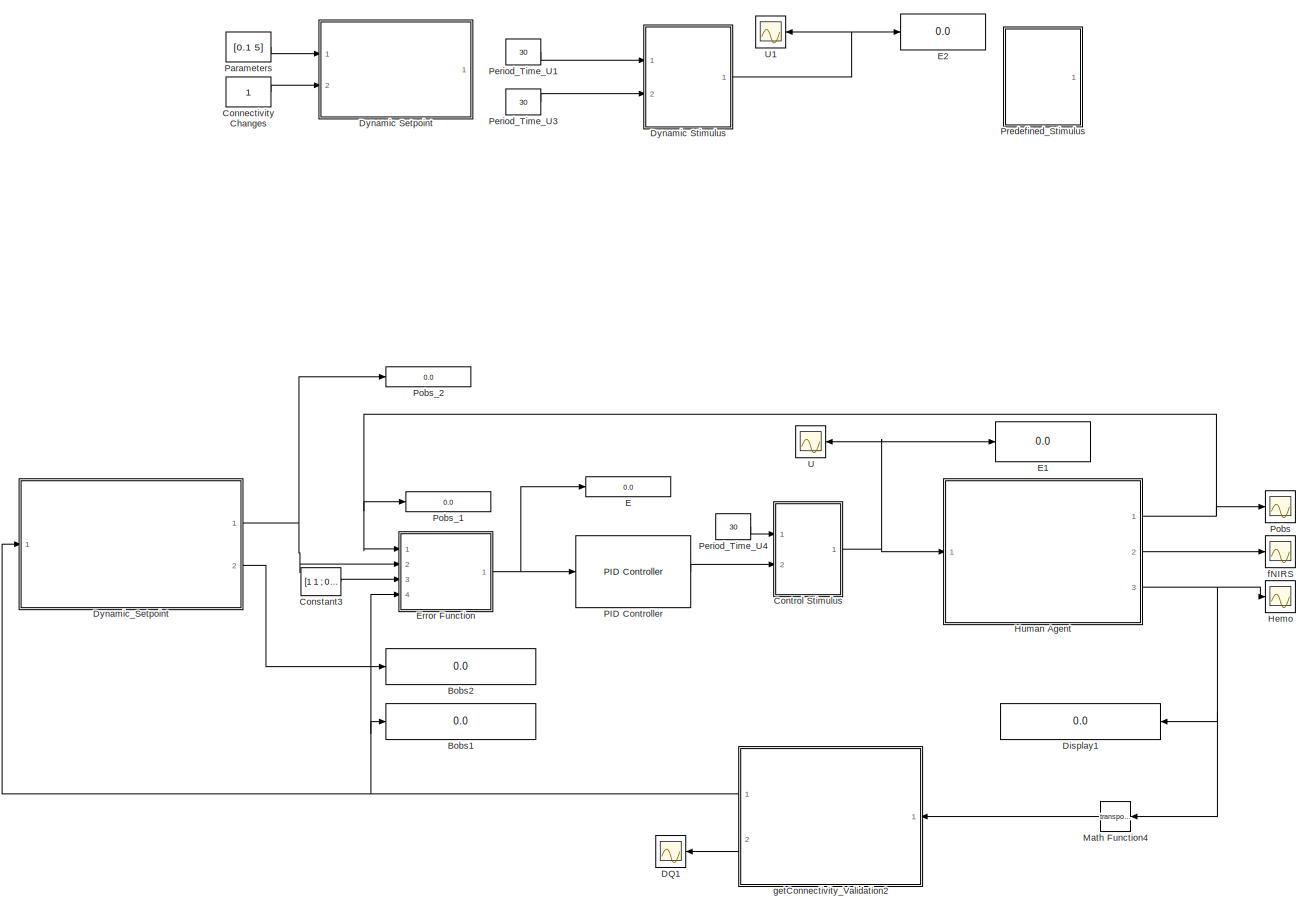
[diagram: root canvas - part 1/1, most of the canvas]
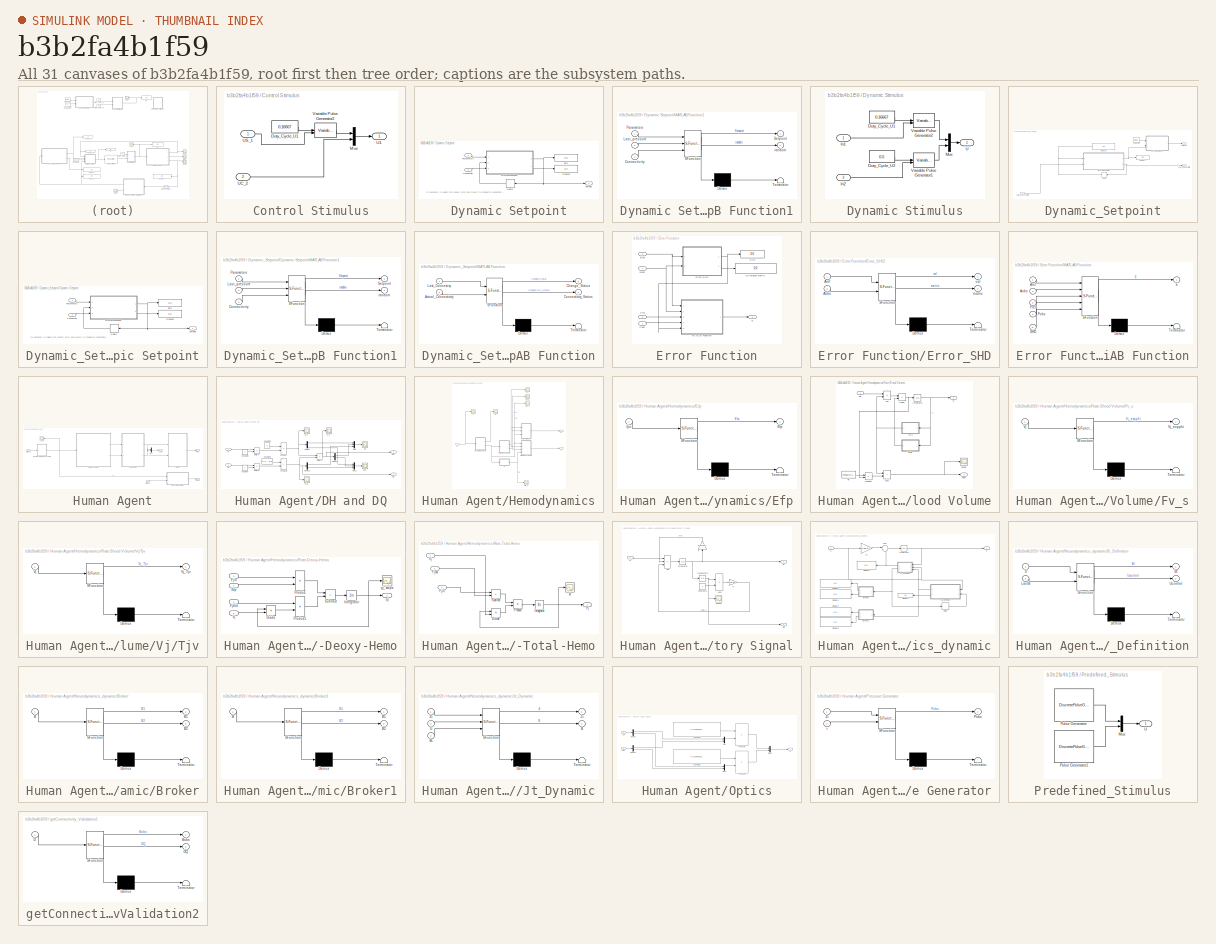
[diagram: thumbnail index - all 31 canvases of the model, root first then tree order]
MODEL slx_b3b2fa4b1f59
KIND model
CONFIG AbsTol = auto
CONFIG EnableMultiTasking = off
CONFIG FixedStep = 1/100
CONFIG MaxStep = auto
CONFIG MinStep = auto
CONFIG RelTol = 1e-3
CONFIG SampleTimeConstraint = Unconstrained
CONFIG SolverName = ode23tb
CONFIG StartTime = 0
CONFIG StopTime = 90
BLOCK [Display] Bobs1
  Decimation = 1
  Ports = [1]
BLOCK [Display] Bobs2
  Decimation = 1
  Ports = [1]
BLOCK [Constant] Connectivity Changes
BLOCK [Constant] Constant3
  Value = [1   1 ; 0  1]
BLOCK [SubSystem] Control Stimulus
  Ports = [2, 1]
  RequestExecContextInheritance = off
BLOCK [Constant] Control Stimulus/Duty_Cycle_U1
  OutMax = [0.8]
  OutMin = [0]
  Value = 0.16667
BLOCK [Mux] Control Stimulus/Mux
  DisplayOption = bar
  Inputs = 2
  Ports = [2, 1]
BLOCK [Outport] Control Stimulus/U1
BLOCK [Inport] Control Stimulus/UC_2
  Port = 2
BLOCK [Inport] Control Stimulus/US_1
BLOCK [VariablePulseGenerator] Control Stimulus/Variable Pulse Generator2
  RunAtFixedTimeIntervals = on
  SampleTime = 1/100
BLOCK [Scope] DQ1
  Floating = off
  NumInputPorts = 1
  Ports = [1]
  ScopeSpecificationString = Simulink.scopes.TimeScopeBlockCfg('CurrentConfiguration', extmgr.ConfigurationSet(extmgr.Configuration('Core','General UI',true,'FigureColor',[1 1 1]),extmgr.Configuration('Core','Source UI',true),extmgr.Configuration('Sources','WiredSimulink',true,'DataLoggingVariableName','ScopeData1'),extmgr.Configuration('Visuals','Time Domain',true,'SerializedDisplays',{struct('MinYLimReal','-0.34921','MaxYLi...<+1720ch>
BLOCK [Display] Display1
  Decimation = 1
  Ports = [1]
BLOCK [SubSystem] Dynamic Setpoint
  Ports = [2, 1]
  RequestExecContextInheritance = off
BLOCK [Inport] Dynamic Setpoint/Connectiviy
  Port = 2
BLOCK [Delay] Dynamic Setpoint/Delay1
  DelayLength = 1
  InitialCondition = 0
  InputPortMap = u0
  Ports = [1, 1]
BLOCK [SubSystem] Dynamic Setpoint/MATLAB Function1
  ErrorFcn = Stateflow.Translate.translate
  PermitHierarchicalResolution = ExplicitOnly
  Ports = [3, 2]
  RequestExecContextInheritance = off
  SFBlockType = MATLAB Function
  TreatAsAtomicUnit = on
BLOCK [Demux] Dynamic Setpoint/MATLAB Function1/ Demux 
  Outputs = 1
  Ports = [1, 1]
BLOCK [S-Function] Dynamic Setpoint/MATLAB Function1/ SFunction 
  EnableBusSupport = on
  FunctionName = sf_sfun
  PortCounts = [3 3]
  Ports = [3, 3]
  SFcnIsStateOwnerBlock = off
  SFunctionDeploymentMode = off
  Tag = Stateflow S-Function 11
BLOCK [Terminator] Dynamic Setpoint/MATLAB Function1/ Terminator 
BLOCK [Inport] Dynamic Setpoint/MATLAB Function1/Connectivity
  Port = 3
BLOCK [Inport] Dynamic Setpoint/MATLAB Function1/Last_pressure
  Port = 2
BLOCK [Inport] Dynamic Setpoint/MATLAB Function1/Parameters
BLOCK [Outport] Dynamic Setpoint/MATLAB Function1/Setpoint
BLOCK [Outport] Dynamic Setpoint/MATLAB Function1/random
  Port = 2
BLOCK [Inport] Dynamic Setpoint/Parameters
BLOCK [Display] Dynamic Setpoint/Random
  Decimation = 1
  Ports = [1]
BLOCK [Display] Dynamic Setpoint/Set1
  Decimation = 1
  Ports = [1]
BLOCK [Outport] Dynamic Setpoint/Setpoint
BLOCK [SubSystem] Dynamic Stimulus
  Ports = [2, 1]
  RequestExecContextInheritance = off
BLOCK [Constant] Dynamic Stimulus/Duty_Cycle_U1
  OutMax = [0.8]
  OutMin = [0]
  Value = 0.16667
BLOCK [Constant] Dynamic Stimulus/Duty_Cycle_U2
  OutMax = [0.8]
  OutMin = [0]
  Value = 0.5
BLOCK [Inport] Dynamic Stimulus/In1
BLOCK [Inport] Dynamic Stimulus/In2
  Port = 2
BLOCK [Mux] Dynamic Stimulus/Mux
  DisplayOption = bar
  Inputs = 2
  Ports = [2, 1]
BLOCK [Outport] Dynamic Stimulus/U
BLOCK [VariablePulseGenerator] Dynamic Stimulus/Variable Pulse Generator1
  RunAtFixedTimeIntervals = on
  SampleTime = 1/100
BLOCK [VariablePulseGenerator] Dynamic Stimulus/Variable Pulse Generator2
  RunAtFixedTimeIntervals = on
  SampleTime = 1/100
BLOCK [SubSystem] Dynamic_Setpoint
  Ports = [1, 2]
  RequestExecContextInheritance = off
BLOCK [Inport] Dynamic_Setpoint/Actual_Connectivity
BLOCK [Delay] Dynamic_Setpoint/Delay
  DelayLength = 1
  InputPortMap = u0
  Ports = [1, 1]
BLOCK [Display] Dynamic_Setpoint/Display1
  Decimation = 1
  Ports = [1]
BLOCK [Display] Dynamic_Setpoint/Display3
  Decimation = 1
  Ports = [1]
BLOCK [SubSystem] Dynamic_Setpoint/Dynamic Setpoint
  Ports = [2, 1]
  RequestExecContextInheritance = off
BLOCK [Inport] Dynamic_Setpoint/Dynamic Setpoint/Connectiviy
  Port = 2
BLOCK [Delay] Dynamic_Setpoint/Dynamic Setpoint/Delay1
  DelayLength = 1
  InitialCondition = 0
  InputPortMap = u0
  Ports = [1, 1]
BLOCK [SubSystem] Dynamic_Setpoint/Dynamic Setpoint/MATLAB Function1
  ErrorFcn = Stateflow.Translate.translate
  PermitHierarchicalResolution = ExplicitOnly
  Ports = [3, 2]
  RequestExecContextInheritance = off
  SFBlockType = MATLAB Function
  TreatAsAtomicUnit = on
BLOCK [Demux] Dynamic_Setpoint/Dynamic Setpoint/MATLAB Function1/ Demux 
  Outputs = 1
  Ports = [1, 1]
BLOCK [S-Function] Dynamic_Setpoint/Dynamic Setpoint/MATLAB Function1/ SFunction 
  EnableBusSupport = on
  FunctionName = sf_sfun
  PortCounts = [3 3]
  Ports = [3, 3]
  SFcnIsStateOwnerBlock = off
  SFunctionDeploymentMode = off
  Tag = Stateflow S-Function 9
BLOCK [Terminator] Dynamic_Setpoint/Dynamic Setpoint/MATLAB Function1/ Terminator 
BLOCK [Inport] Dynamic_Setpoint/Dynamic Setpoint/MATLAB Function1/Connectivity
  Port = 3
BLOCK [Inport] Dynamic_Setpoint/Dynamic Setpoint/MATLAB Function1/Last_pressure
  Port = 2
BLOCK [Inport] Dynamic_Setpoint/Dynamic Setpoint/MATLAB Function1/Parameters
BLOCK [Outport] Dynamic_Setpoint/Dynamic Setpoint/MATLAB Function1/Setpoint
BLOCK [Outport] Dynamic_Setpoint/Dynamic Setpoint/MATLAB Function1/random
  Port = 2
BLOCK [Inport] Dynamic_Setpoint/Dynamic Setpoint/Parameters
BLOCK [Display] Dynamic_Setpoint/Dynamic Setpoint/Random
  Decimation = 1
  Ports = [1]
BLOCK [Display] Dynamic_Setpoint/Dynamic Setpoint/Set1
  Decimation = 1
  Ports = [1]
BLOCK [Outport] Dynamic_Setpoint/Dynamic Setpoint/Setpoint
BLOCK [Outport] Dynamic_Setpoint/Last_Connectivity
  Port = 2
BLOCK [SubSystem] Dynamic_Setpoint/MATLAB Function
  ErrorFcn = Stateflow.Translate.translate
  PermitHierarchicalResolution = ExplicitOnly
  Ports = [2, 2]
  RequestExecContextInheritance = off
  SFBlockType = MATLAB Function
  TreatAsAtomicUnit = on
BLOCK [Demux] Dynamic_Setpoint/MATLAB Function/ Demux 
  Outputs = 1
  Ports = [1, 1]
BLOCK [S-Function] Dynamic_Setpoint/MATLAB Function/ SFunction 
  EnableBusSupport = on
  FunctionName = sf_sfun
  PortCounts = [2 3]
  Ports = [2, 3]
  SFcnIsStateOwnerBlock = off
  SFunctionDeploymentMode = off
  Tag = Stateflow S-Function 12
BLOCK [Terminator] Dynamic_Setpoint/MATLAB Function/ Terminator 
BLOCK [Inport] Dynamic_Setpoint/MATLAB Function/Actual_Connectivity
  Port = 2
BLOCK [Outport] Dynamic_Setpoint/MATLAB Function/Change_Status
BLOCK [Outport] Dynamic_Setpoint/MATLAB Function/Connectivity_Status
  Port = 2
BLOCK [Inport] Dynamic_Setpoint/MATLAB Function/Last_Connectivy
BLOCK [Constant] Dynamic_Setpoint/Parameters
  Value = [0.5 5]
BLOCK [Outport] Dynamic_Setpoint/Setpoint
BLOCK [Display] E
  Decimation = 1
  Ports = [1]
BLOCK [Display] E1
  Decimation = 1
  Ports = [1]
BLOCK [Display] E2
  Decimation = 1
  Ports = [1]
BLOCK [SubSystem] Error Function
  Ports = [4, 1]
  RequestExecContextInheritance = off
BLOCK [Inport] Error Function/Bobs
  Port = 4
BLOCK [Inport] Error Function/Bref
  Port = 3
BLOCK [Display] Error Function/Difference Matrix
  Decimation = 1
  Ports = [1]
BLOCK [Outport] Error Function/E
BLOCK [SubSystem] Error Function/Error_SHD
  ErrorFcn = Stateflow.Translate.translate
  PermitHierarchicalResolution = ExplicitOnly
  Ports = [2, 2]
  RequestExecContextInheritance = off
  SFBlockType = MATLAB Function
  TreatAsAtomicUnit = on
BLOCK [Demux] Error Function/Error_SHD/ Demux 
  Outputs = 1
  Ports = [1, 1]
BLOCK [S-Function] Error Function/Error_SHD/ SFunction 
  EnableBusSupport = on
  FunctionName = sf_sfun
  PortCounts = [2 3]
  Ports = [2, 3]
  SFcnIsStateOwnerBlock = off
  SFunctionDeploymentMode = off
  Tag = Stateflow S-Function 4
BLOCK [Terminator] Error Function/Error_SHD/ Terminator 
BLOCK [Inport] Error Function/Error_SHD/Aobs
  Port = 2
BLOCK [Inport] Error Function/Error_SHD/Aref
BLOCK [Outport] Error Function/Error_SHD/matrix
  Port = 2
BLOCK [Outport] Error Function/Error_SHD/val
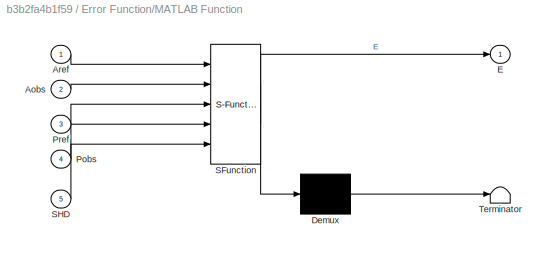
BLOCK [SubSystem] Error Function/MATLAB Function
  ErrorFcn = Stateflow.Translate.translate
  PermitHierarchicalResolution = ExplicitOnly
  Ports = [5, 1]
  RequestExecContextInheritance = off
  SFBlockType = MATLAB Function
  TreatAsAtomicUnit = on
BLOCK [Demux] Error Function/MATLAB Function/ Demux 
  Outputs = 1
  Ports = [1, 1]
BLOCK [S-Function] Error Function/MATLAB Function/ SFunction 
  EnableBusSupport = on
  FunctionName = sf_sfun
  PortCounts = [5 2]
  Ports = [5, 2]
  SFcnIsStateOwnerBlock = off
  SFunctionDeploymentMode = off
  Tag = Stateflow S-Function 6
BLOCK [Terminator] Error Function/MATLAB Function/ Terminator 
BLOCK [Inport] Error Function/MATLAB Function/Aobs
  Port = 2
BLOCK [Inport] Error Function/MATLAB Function/Aref
BLOCK [Outport] Error Function/MATLAB Function/E
BLOCK [Inport] Error Function/MATLAB Function/Pobs
  Port = 4
BLOCK [Inport] Error Function/MATLAB Function/Pref
  Port = 3
BLOCK [Inport] Error Function/MATLAB Function/SHD
  Port = 5
BLOCK [Inport] Error Function/Pobs
BLOCK [Inport] Error Function/Pref
  Port = 2
BLOCK [Display] Error Function/SHD
  Decimation = 1
  Ports = [1]
BLOCK [Scope] Hemo
  Floating = off
  NumInputPorts = 1
  Ports = [1]
  ScopeSpecificationString = Simulink.scopes.TimeScopeBlockCfg('CurrentConfiguration', extmgr.ConfigurationSet(extmgr.Configuration('Core','General UI',true,'FigureColor',[0 0 0]),extmgr.Configuration('Core','Source UI',true),extmgr.Configuration('Sources','WiredSimulink',true,'DataLoggingVariableName','ScopeData1'),extmgr.Configuration('Visuals','Time Domain',true,'SerializedDisplays',{struct('MinYLimReal','-61.03763','MaxYL...<+1723ch>
BLOCK [SubSystem] Human Agent
  Ports = [1, 3]
  RequestExecContextInheritance = off
BLOCK [Clock] Human Agent/Clock
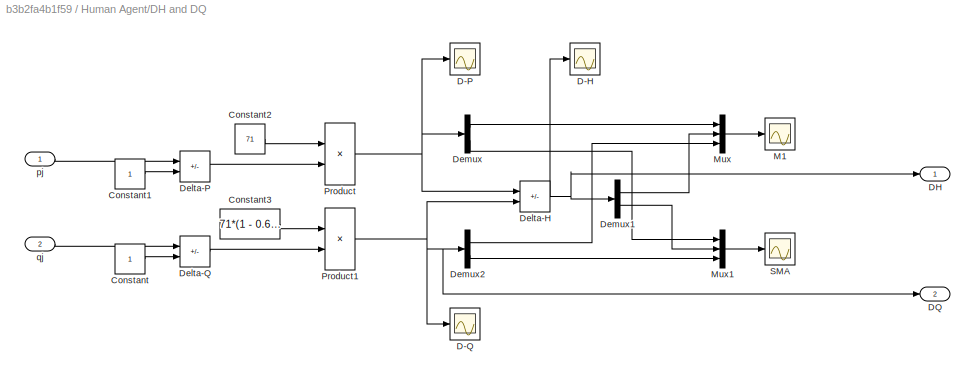
BLOCK [SubSystem] Human Agent/DH and DQ
  Ports = [2, 2]
  RequestExecContextInheritance = off
BLOCK [Constant] Human Agent/DH and DQ/Constant
BLOCK [Constant] Human Agent/DH and DQ/Constant1
BLOCK [Constant] Human Agent/DH and DQ/Constant2
  Value = 71
BLOCK [Constant] Human Agent/DH and DQ/Constant3
  Value = 71*(1 - 0.65)
BLOCK [Scope] Human Agent/DH and DQ/D-H
  Floating = off
  NumInputPorts = 1
  Ports = [1]
  ScopeSpecificationString = Simulink.scopes.TimeScopeBlockCfg('CurrentConfiguration', extmgr.ConfigurationSet(extmgr.Configuration('Core','General UI',true),extmgr.Configuration('Core','Source UI',true),extmgr.Configuration('Sources','WiredSimulink',true,'DataLoggingVariableName','ScopeData7'),extmgr.Configuration('Visuals','Time Domain',true,'SerializedDisplays',{struct('MinYLimReal','-2.91276','MaxYLimReal','17.16126','YLa...<+1449ch>
BLOCK [Scope] Human Agent/DH and DQ/D-P
  Floating = off
  NumInputPorts = 1
  Ports = [1]
  ScopeSpecificationString = Simulink.scopes.TimeScopeBlockCfg('CurrentConfiguration', extmgr.ConfigurationSet(extmgr.Configuration('Core','General UI',true),extmgr.Configuration('Core','Source UI',true),extmgr.Configuration('Sources','WiredSimulink',true,'DataLoggingVariableName','ScopeData5'),extmgr.Configuration('Visuals','Time Domain',true,'SerializedDisplays',{struct('MinYLimReal','-2.54989','MaxYLimReal','15.75385','YLa...<+1449ch>
BLOCK [Scope] Human Agent/DH and DQ/D-Q
  Floating = off
  NumInputPorts = 1
  Ports = [1]
  ScopeSpecificationString = Simulink.scopes.TimeScopeBlockCfg('CurrentConfiguration', extmgr.ConfigurationSet(extmgr.Configuration('Core','General UI',true),extmgr.Configuration('Core','Source UI',true),extmgr.Configuration('Sources','WiredSimulink',true,'DataLoggingVariableName','ScopeData6'),extmgr.Configuration('Visuals','Time Domain',true,'SerializedDisplays',{struct('MinYLimReal','-1.63975','MaxYLimReal','0.38869','YLab...<+1447ch>
BLOCK [Outport] Human Agent/DH and DQ/DH
BLOCK [Outport] Human Agent/DH and DQ/DQ
  Port = 2
BLOCK [Sum] Human Agent/DH and DQ/Delta-H
  IconShape = rectangular
  Inputs = +-
  Ports = [2, 1]
BLOCK [Sum] Human Agent/DH and DQ/Delta-P
  IconShape = rectangular
  Inputs = +-
  Ports = [2, 1]
BLOCK [Sum] Human Agent/DH and DQ/Delta-Q
  IconShape = rectangular
  Inputs = +-
  Ports = [2, 1]
BLOCK [Demux] Human Agent/DH and DQ/Demux
  Outputs = 2
  Ports = [1, 2]
BLOCK [Demux] Human Agent/DH and DQ/Demux1
  Outputs = 2
  Ports = [1, 2]
BLOCK [Demux] Human Agent/DH and DQ/Demux2
  Outputs = 2
  Ports = [1, 2]
BLOCK [Scope] Human Agent/DH and DQ/M1
  Floating = off
  NumInputPorts = 1
  Ports = [1]
  ScopeSpecificationString = Simulink.scopes.TimeScopeBlockCfg('CurrentConfiguration', extmgr.ConfigurationSet(extmgr.Configuration('Core','General UI',true),extmgr.Configuration('Core','Source UI',true),extmgr.Configuration('Sources','WiredSimulink',true,'DataLoggingVariableName','ScopeData8'),extmgr.Configuration('Visuals','Time Domain',true,'SerializedDisplays',{struct('MinYLimReal','-3.32107','MaxYLimReal','11.14492','YLa...<+1768ch>
BLOCK [Mux] Human Agent/DH and DQ/Mux
  DisplayOption = bar
  Inputs = 3
  Ports = [3, 1]
BLOCK [Mux] Human Agent/DH and DQ/Mux1
  DisplayOption = bar
  Inputs = 3
  Ports = [3, 1]
BLOCK [Product] Human Agent/DH and DQ/Product
  Ports = [2, 1]
BLOCK [Product] Human Agent/DH and DQ/Product1
  Ports = [2, 1]
BLOCK [Scope] Human Agent/DH and DQ/SMA
  Floating = off
  NumInputPorts = 1
  Ports = [1]
  ScopeSpecificationString = Simulink.scopes.TimeScopeBlockCfg('CurrentConfiguration', extmgr.ConfigurationSet(extmgr.Configuration('Core','General UI',true),extmgr.Configuration('Core','Source UI',true),extmgr.Configuration('Sources','WiredSimulink',true,'DataLoggingVariableName','ScopeData9'),extmgr.Configuration('Visuals','Time Domain',true,'SerializedDisplays',{struct('MinYLimReal','-6.21377','MaxYLimReal','17.71331','YLa...<+1773ch>
BLOCK [Inport] Human Agent/DH and DQ/pj
BLOCK [Inport] Human Agent/DH and DQ/qj
  Port = 2
BLOCK [Outport] Human Agent/DH-Q
  Port = 3
BLOCK [SubSystem] Human Agent/Hemodynamics
  Ports = [1, 2]
  RequestExecContextInheritance = off
BLOCK [SubSystem] Human Agent/Hemodynamics/Efp
  ErrorFcn = Stateflow.Translate.translate
  PermitHierarchicalResolution = ExplicitOnly
  Ports = [1, 1]
  RequestExecContextInheritance = off
  SFBlockType = MATLAB Function
  TreatAsAtomicUnit = on
BLOCK [Demux] Human Agent/Hemodynamics/Efp/ Demux 
  Outputs = 1
  Ports = [1, 1]
BLOCK [S-Function] Human Agent/Hemodynamics/Efp/ SFunction 
  EnableBusSupport = on
  FunctionName = sf_sfun
  PortCounts = [1 2]
  Ports = [1, 2]
  SFcnIsStateOwnerBlock = off
  SFunctionDeploymentMode = off
  Tag = Stateflow S-Function 5
BLOCK [Terminator] Human Agent/Hemodynamics/Efp/ Terminator 
BLOCK [Outport] Human Agent/Hemodynamics/Efp/Efp
BLOCK [Inport] Human Agent/Hemodynamics/Efp/fjin
BLOCK [Scope] Human Agent/Hemodynamics/Efp_1
  Floating = off
  NumInputPorts = 1
  Ports = [1]
  ScopeSpecificationString = Simulink.scopes.TimeScopeBlockCfg('CurrentConfiguration', extmgr.ConfigurationSet(extmgr.Configuration('Core','General UI',true),extmgr.Configuration('Core','Source UI',true),extmgr.Configuration('Sources','WiredSimulink',true,'DataLoggingVariableName','ScopeData7'),extmgr.Configuration('Visuals','Time Domain',true,'SerializedDisplays',{struct('MinYLimReal','0.87922','MaxYLimReal','1.03497','YLabe...<+1400ch>
BLOCK [Scope] Human Agent/Hemodynamics/Fjin_1
  Floating = off
  NumInputPorts = 1
  Ports = [1]
  ScopeSpecificationString = Simulink.scopes.TimeScopeBlockCfg('CurrentConfiguration', extmgr.ConfigurationSet(extmgr.Configuration('Core','General UI',true),extmgr.Configuration('Core','Source UI',true),extmgr.Configuration('Sources','WiredSimulink',true,'DataLoggingVariableName','ScopeData6'),extmgr.Configuration('Visuals','Time Domain',true,'SerializedDisplays',{struct('MinYLimReal','0.91944','MaxYLimReal','1.21553','YLabe...<+1402ch>
BLOCK [Scope] Human Agent/Hemodynamics/Fjout
  Floating = off
  NumInputPorts = 1
  Ports = [1]
  ScopeSpecificationString = Simulink.scopes.TimeScopeBlockCfg('CurrentConfiguration', extmgr.ConfigurationSet(extmgr.Configuration('Core','General UI',true),extmgr.Configuration('Core','Source UI',true),extmgr.Configuration('Sources','WiredSimulink',true,'DataLoggingVariableName','ScopeData5'),extmgr.Configuration('Visuals','Time Domain',true,'SerializedDisplays',{struct('MinYLimReal','0.96309','MaxYLimReal','1.1501','YLabel...<+1400ch>
BLOCK [Outport] Human Agent/Hemodynamics/Pj
BLOCK [SubSystem] Human Agent/Hemodynamics/Rate Blood Volume
  Ports = [1, 2]
  RequestExecContextInheritance = off
BLOCK [Sum] Human Agent/Hemodynamics/Rate Blood Volume/Add
  IconShape = rectangular
  Inputs = +-
  Ports = [2, 1]
BLOCK [Sum] Human Agent/Hemodynamics/Rate Blood Volume/Add1
  IconShape = rectangular
  Ports = [2, 1]
BLOCK [Product] Human Agent/Hemodynamics/Rate Blood Volume/Divide
  Inputs = */
  Ports = [2, 1]
BLOCK [Inport] Human Agent/Hemodynamics/Rate Blood Volume/Fjin
BLOCK [Outport] Human Agent/Hemodynamics/Rate Blood Volume/Fjout
  Port = 2
BLOCK [SubSystem] Human Agent/Hemodynamics/Rate Blood Volume/Fv_s
  ErrorFcn = Stateflow.Translate.translate
  PermitHierarchicalResolution = ExplicitOnly
  Ports = [1, 1]
  RequestExecContextInheritance = off
  SFBlockType = MATLAB Function
  TreatAsAtomicUnit = on
BLOCK [Demux] Human Agent/Hemodynamics/Rate Blood Volume/Fv_s/ Demux 
  Outputs = 1
  Ports = [1, 1]
BLOCK [S-Function] Human Agent/Hemodynamics/Rate Blood Volume/Fv_s/ SFunction 
  EnableBusSupport = on
  FunctionName = sf_sfun
  PortCounts = [1 2]
  Ports = [1, 2]
  SFcnIsStateOwnerBlock = off
  SFunctionDeploymentMode = off
  Tag = Stateflow S-Function 7
BLOCK [Terminator] Human Agent/Hemodynamics/Rate Blood Volume/Fv_s/ Terminator 
BLOCK [Inport] Human Agent/Hemodynamics/Rate Blood Volume/Fv_s/Vj
BLOCK [Outport] Human Agent/Hemodynamics/Rate Blood Volume/Fv_s/Vj_expphi
BLOCK [Integrator] Human Agent/Hemodynamics/Rate Blood Volume/Integrator
  InitialCondition = exp([0;0])
  Ports = [1, 1]
BLOCK [Product] Human Agent/Hemodynamics/Rate Blood Volume/Product
  Ports = [2, 1]
BLOCK [Scope] Human Agent/Hemodynamics/Rate Blood Volume/Scope
  Floating = off
  NumInputPorts = 1
  Ports = [1]
  ScopeSpecificationString = Simulink.scopes.TimeScopeBlockCfg('CurrentConfiguration', extmgr.ConfigurationSet(extmgr.Configuration('Core','General UI',true),extmgr.Configuration('Core','Source UI',true),extmgr.Configuration('Sources','WiredSimulink',true,'DataLoggingVariableName','ScopeData2'),extmgr.Configuration('Visuals','Time Domain',true,'SerializedDisplays',{struct('MinYLimReal','0.96417','MaxYLimReal','1.14994','YLabe...<+1372ch>
BLOCK [Constant] Human Agent/Hemodynamics/Rate Blood Volume/Tjv
  Value = 2*exp([0;1])
BLOCK [Outport] Human Agent/Hemodynamics/Rate Blood Volume/Vj
BLOCK [SubSystem] Human Agent/Hemodynamics/Rate Blood Volume/Vj//Tjv
  ErrorFcn = Stateflow.Translate.translate
  PermitHierarchicalResolution = ExplicitOnly
  Ports = [1, 1]
  RequestExecContextInheritance = off
  SFBlockType = MATLAB Function
  TreatAsAtomicUnit = on
BLOCK [Demux] Human Agent/Hemodynamics/Rate Blood Volume/Vj//Tjv/ Demux 
  Outputs = 1
  Ports = [1, 1]
BLOCK [S-Function] Human Agent/Hemodynamics/Rate Blood Volume/Vj//Tjv/ SFunction 
  EnableBusSupport = on
  FunctionName = sf_sfun
  PortCounts = [1 2]
  Ports = [1, 2]
  SFcnIsStateOwnerBlock = off
  SFunctionDeploymentMode = off
  Tag = Stateflow S-Function 8
BLOCK [Terminator] Human Agent/Hemodynamics/Rate Blood Volume/Vj//Tjv/ Terminator 
BLOCK [Inport] Human Agent/Hemodynamics/Rate Blood Volume/Vj//Tjv/Vj
BLOCK [Outport] Human Agent/Hemodynamics/Rate Blood Volume/Vj//Tjv/Vj_Tjv
BLOCK [SubSystem] Human Agent/Hemodynamics/Rate-Deoxy-Hemo
  Ports = [4, 1]
  RequestExecContextInheritance = off
BLOCK [Product] Human Agent/Hemodynamics/Rate-Deoxy-Hemo/Divide
  Inputs = */
  Ports = [2, 1]
BLOCK [Inport] Human Agent/Hemodynamics/Rate-Deoxy-Hemo/Efp
  Port = 4
BLOCK [Inport] Human Agent/Hemodynamics/Rate-Deoxy-Hemo/Fjin
BLOCK [Inport] Human Agent/Hemodynamics/Rate-Deoxy-Hemo/Fjout
  Port = 3
BLOCK [Integrator] Human Agent/Hemodynamics/Rate-Deoxy-Hemo/Integrator
  InitialCondition = exp([0;0])
  Ports = [1, 1]
BLOCK [Product] Human Agent/Hemodynamics/Rate-Deoxy-Hemo/Product
  Ports = [2, 1]
BLOCK [Product] Human Agent/Hemodynamics/Rate-Deoxy-Hemo/Product1
  Ports = [2, 1]
BLOCK [Sum] Human Agent/Hemodynamics/Rate-Deoxy-Hemo/Subtract
  IconShape = rectangular
  Inputs = +-
  Ports = [2, 1]
BLOCK [Inport] Human Agent/Hemodynamics/Rate-Deoxy-Hemo/Vj
  Port = 2
BLOCK [Outport] Human Agent/Hemodynamics/Rate-Deoxy-Hemo/qj
BLOCK [Scope] Human Agent/Hemodynamics/Rate-Deoxy-Hemo/qj_scope
  Floating = off
  NumInputPorts = 1
  Ports = [1]
  ScopeSpecificationString = Simulink.scopes.TimeScopeBlockCfg('CurrentConfiguration', extmgr.ConfigurationSet(extmgr.Configuration('Core','General UI',true),extmgr.Configuration('Core','Source UI',true),extmgr.Configuration('Sources','WiredSimulink',true,'DataLoggingVariableName','ScopeData1'),extmgr.Configuration('Visuals','Time Domain',true,'SerializedDisplays',{struct('MinYLimReal','0.9335','MaxYLimReal','1.01624','YLabel...<+1411ch>
BLOCK [SubSystem] Human Agent/Hemodynamics/Rate-Total-Hemo
  Ports = [3, 1]
  RequestExecContextInheritance = off
BLOCK [Product] Human Agent/Hemodynamics/Rate-Total-Hemo/Divide
  Inputs = */
  Ports = [2, 1]
BLOCK [Inport] Human Agent/Hemodynamics/Rate-Total-Hemo/Fjin
  Port = 3
BLOCK [Inport] Human Agent/Hemodynamics/Rate-Total-Hemo/Fjout
  Port = 2
BLOCK [Integrator] Human Agent/Hemodynamics/Rate-Total-Hemo/Integrator
  InitialCondition = exp([0;0])
  Ports = [1, 1]
BLOCK [Outport] Human Agent/Hemodynamics/Rate-Total-Hemo/Pj
BLOCK [Product] Human Agent/Hemodynamics/Rate-Total-Hemo/Product
  Ports = [2, 1]
BLOCK [Sum] Human Agent/Hemodynamics/Rate-Total-Hemo/Subtract
  IconShape = rectangular
  Inputs = +-
  Ports = [2, 1]
BLOCK [Inport] Human Agent/Hemodynamics/Rate-Total-Hemo/Vj
BLOCK [Scope] Human Agent/Hemodynamics/Rate-Total-Hemo/pj
  Floating = off
  NumInputPorts = 1
  Ports = [1]
  ScopeSpecificationString = Simulink.scopes.TimeScopeBlockCfg('CurrentConfiguration', extmgr.ConfigurationSet(extmgr.Configuration('Core','General UI',true),extmgr.Configuration('Core','Source UI',true),extmgr.Configuration('Sources','WiredSimulink',true,'DataLoggingVariableName','ScopeData2'),extmgr.Configuration('Visuals','Time Domain',true,'SerializedDisplays',{struct('MinYLimReal','0.96327','MaxYLimReal','1.22259','YLabe...<+1415ch>
BLOCK [Scope] Human Agent/Hemodynamics/Sj
  Floating = off
  NumInputPorts = 1
  Ports = [1]
  ScopeSpecificationString = Simulink.scopes.TimeScopeBlockCfg('CurrentConfiguration', extmgr.ConfigurationSet(extmgr.Configuration('Core','General UI',true),extmgr.Configuration('Core','Source UI',true),extmgr.Configuration('Sources','WiredSimulink',true,'DataLoggingVariableName','ScopeData1'),extmgr.Configuration('Visuals','Time Domain',true,'SerializedDisplays',{struct('MinYLimReal','-0.05655','MaxYLimReal','0.05896','YLab...<+1438ch>
BLOCK [SubSystem] Human Agent/Hemodynamics/Vasodilatory Signal
  Ports = [1, 2]
  RequestExecContextInheritance = off
BLOCK [Sum] Human Agent/Hemodynamics/Vasodilatory Signal/Add
  IconShape = rectangular
  Inputs = +--
  Ports = [3, 1]
BLOCK [Sum] Human Agent/Hemodynamics/Vasodilatory Signal/Add1
  IconShape = rectangular
  Inputs = +-
  Ports = [2, 1]
BLOCK [Constant] Human Agent/Hemodynamics/Vasodilatory Signal/Constant1
BLOCK [Outport] Human Agent/Hemodynamics/Vasodilatory Signal/Fjin
  Port = 2
BLOCK [Integrator] Human Agent/Hemodynamics/Vasodilatory Signal/Integrator
  Ports = [1, 1]
BLOCK [Integrator] Human Agent/Hemodynamics/Vasodilatory Signal/Integrator1
  InitialCondition = exp([0;0])
  Ports = [1, 1]
BLOCK [Gain] Human Agent/Hemodynamics/Vasodilatory Signal/K
  Gain = 0.64*exp([0;0.05])
  NameLocation = right
BLOCK [Scope] Human Agent/Hemodynamics/Vasodilatory Signal/Scope1
  Floating = off
  NumInputPorts = 1
  Ports = [1]
  ScopeSpecificationString = Simulink.scopes.TimeScopeBlockCfg('CurrentConfiguration', extmgr.ConfigurationSet(extmgr.Configuration('Core','General UI',true),extmgr.Configuration('Core','Source UI',true),extmgr.Configuration('Sources','WiredSimulink',true,'DataLoggingVariableName','ScopeData1'),extmgr.Configuration('Visuals','Time Domain',true,'SerializedDisplays',{struct('MinYLimReal','-0.02898','MaxYLimReal','0.08445','YLab...<+1370ch>
BLOCK [Outport] Human Agent/Hemodynamics/Vasodilatory Signal/Sj
BLOCK [Gain] Human Agent/Hemodynamics/Vasodilatory Signal/Yj
  Gain = 0.32*exp([0;0.05])
BLOCK [Inport] Human Agent/Hemodynamics/Vasodilatory Signal/Zj
BLOCK [Scope] Human Agent/Hemodynamics/Vj
  Floating = off
  NumInputPorts = 1
  Ports = [1]
  ScopeSpecificationString = Simulink.scopes.TimeScopeBlockCfg('CurrentConfiguration', extmgr.ConfigurationSet(extmgr.Configuration('Core','General UI',true),extmgr.Configuration('Core','Source UI',true),extmgr.Configuration('Sources','WiredSimulink',true,'DataLoggingVariableName','ScopeData4'),extmgr.Configuration('Visuals','Time Domain',true,'SerializedDisplays',{struct('MinYLimReal','0.98425','MaxYLimReal','1.05844','YLabe...<+1398ch>
BLOCK [Scope] Human Agent/Hemodynamics/Z
  Floating = off
  NumInputPorts = 1
  Ports = [1]
  ScopeSpecificationString = Simulink.scopes.TimeScopeBlockCfg('CurrentConfiguration', extmgr.ConfigurationSet(extmgr.Configuration('Core','General UI',true),extmgr.Configuration('Core','Source UI',true),extmgr.Configuration('Sources','WiredSimulink',true),extmgr.Configuration('Visuals','Time Domain',true,'SerializedDisplays',{struct('MinYLimReal','-0.01031','MaxYLimReal','0.05684','YLabelReal','','MinYLimMag','0.00000','MaxY...<+1359ch>
BLOCK [Inport] Human Agent/Hemodynamics/Zj
BLOCK [Outport] Human Agent/Hemodynamics/qj
  Port = 2
BLOCK [Mux] Human Agent/Mux
  DisplayOption = bar
  Inputs = 2
  Ports = [2, 1]
BLOCK [SubSystem] Human Agent/Neurodynamics_dynamic
  Ports = [1, 1]
  RequestExecContextInheritance = off
BLOCK [SubSystem] Human Agent/Neurodynamics_dynamic/B_Definition
  ErrorFcn = Stateflow.Translate.translate
  PermitHierarchicalResolution = ExplicitOnly
  Ports = [2, 2]
  RequestExecContextInheritance = off
  SFBlockType = MATLAB Function
  TreatAsAtomicUnit = on
BLOCK [Demux] Human Agent/Neurodynamics_dynamic/B_Definition/ Demux 
  Outputs = 1
  Ports = [1, 1]
BLOCK [S-Function] Human Agent/Neurodynamics_dynamic/B_Definition/ SFunction 
  EnableBusSupport = on
  FunctionName = sf_sfun
  PortCounts = [2 3]
  Ports = [2, 3]
  SFcnIsStateOwnerBlock = off
  SFunctionDeploymentMode = off
  Tag = Stateflow S-Function 16
BLOCK [Terminator] Human Agent/Neurodynamics_dynamic/B_Definition/ Terminator 
BLOCK [Outport] Human Agent/Neurodynamics_dynamic/B_Definition/Bt
BLOCK [Inport] Human Agent/Neurodynamics_dynamic/B_Definition/LastB
  Port = 2
BLOCK [Inport] Human Agent/Neurodynamics_dynamic/B_Definition/U
BLOCK [Outport] Human Agent/Neurodynamics_dynamic/B_Definition/Ucontrol
  Port = 2
BLOCK [SubSystem] Human Agent/Neurodynamics_dynamic/Broker
  ErrorFcn = Stateflow.Translate.translate
  PermitHierarchicalResolution = ExplicitOnly
  Ports = [1, 2]
  RequestExecContextInheritance = off
  SFBlockType = MATLAB Function
  TreatAsAtomicUnit = on
BLOCK [Demux] Human Agent/Neurodynamics_dynamic/Broker/ Demux 
  Outputs = 1
  Ports = [1, 1]
BLOCK [S-Function] Human Agent/Neurodynamics_dynamic/Broker/ SFunction 
  EnableBusSupport = on
  FunctionName = sf_sfun
  PortCounts = [1 3]
  Ports = [1, 3]
  SFcnIsStateOwnerBlock = off
  SFunctionDeploymentMode = off
  Tag = Stateflow S-Function 17
BLOCK [Terminator] Human Agent/Neurodynamics_dynamic/Broker/ Terminator 
BLOCK [Inport] Human Agent/Neurodynamics_dynamic/Broker/B
BLOCK [Outport] Human Agent/Neurodynamics_dynamic/Broker/B1
BLOCK [Outport] Human Agent/Neurodynamics_dynamic/Broker/B2
  Port = 2
BLOCK [SubSystem] Human Agent/Neurodynamics_dynamic/Broker1
  ErrorFcn = Stateflow.Translate.translate
  PermitHierarchicalResolution = ExplicitOnly
  Ports = [1, 2]
  RequestExecContextInheritance = off
  SFBlockType = MATLAB Function
  TreatAsAtomicUnit = on
BLOCK [Demux] Human Agent/Neurodynamics_dynamic/Broker1/ Demux 
  Outputs = 1
  Ports = [1, 1]
BLOCK [S-Function] Human Agent/Neurodynamics_dynamic/Broker1/ SFunction 
  EnableBusSupport = on
  FunctionName = sf_sfun
  PortCounts = [1 3]
  Ports = [1, 3]
  SFcnIsStateOwnerBlock = off
  SFunctionDeploymentMode = off
  Tag = Stateflow S-Function 18
BLOCK [Terminator] Human Agent/Neurodynamics_dynamic/Broker1/ Terminator 
BLOCK [Inport] Human Agent/Neurodynamics_dynamic/Broker1/B
BLOCK [Outport] Human Agent/Neurodynamics_dynamic/Broker1/B1
BLOCK [Outport] Human Agent/Neurodynamics_dynamic/Broker1/B2
  Port = 2
BLOCK [Gain] Human Agent/Neurodynamics_dynamic/C1
  Gain = [0.08 0;0.06 0]
  Multiplication = Matrix(K*u) (u vector)
BLOCK [Delay] Human Agent/Neurodynamics_dynamic/Delay
  DelayLength = 1
  InitialCondition = 0
  InputPortMap = u0
  NameLocation = top
  Ports = [1, 1]
BLOCK [Display] Human Agent/Neurodynamics_dynamic/Display2
  Decimation = 1
  Ports = [1]
BLOCK [Display] Human Agent/Neurodynamics_dynamic/Display3
  Decimation = 1
  Ports = [1]
BLOCK [Display] Human Agent/Neurodynamics_dynamic/Display4
  Decimation = 1
  Ports = [1]
BLOCK [Display] Human Agent/Neurodynamics_dynamic/Display5
  Decimation = 1
  Ports = [1]
BLOCK [Display] Human Agent/Neurodynamics_dynamic/Display6
  Decimation = 1
  Ports = [1]
BLOCK [Display] Human Agent/Neurodynamics_dynamic/Display7
  Decimation = 1
  Ports = [1]
BLOCK [Integrator] Human Agent/Neurodynamics_dynamic/Integrator
  Ports = [1, 1]
BLOCK [SubSystem] Human Agent/Neurodynamics_dynamic/Jt_Dynamic
  ErrorFcn = Stateflow.Translate.translate
  PermitHierarchicalResolution = ExplicitOnly
  Ports = [3, 2]
  RequestExecContextInheritance = off
  SFBlockType = MATLAB Function
  TreatAsAtomicUnit = on
BLOCK [Demux] Human Agent/Neurodynamics_dynamic/Jt_Dynamic/ Demux 
  Outputs = 1
  Ports = [1, 1]
BLOCK [S-Function] Human Agent/Neurodynamics_dynamic/Jt_Dynamic/ SFunction 
  EnableBusSupport = on
  FunctionName = sf_sfun
  PortCounts = [3 3]
  Ports = [3, 3]
  SFcnIsStateOwnerBlock = off
  SFunctionDeploymentMode = off
  Tag = Stateflow S-Function 20
BLOCK [Terminator] Human Agent/Neurodynamics_dynamic/Jt_Dynamic/ Terminator 
BLOCK [Outport] Human Agent/Neurodynamics_dynamic/Jt_Dynamic/B
  Port = 2
BLOCK [Inport] Human Agent/Neurodynamics_dynamic/Jt_Dynamic/Bt
  Port = 3
BLOCK [Outport] Human Agent/Neurodynamics_dynamic/Jt_Dynamic/Jt
BLOCK [Inport] Human Agent/Neurodynamics_dynamic/Jt_Dynamic/U
  Port = 2
BLOCK [Inport] Human Agent/Neurodynamics_dynamic/Jt_Dynamic/Zt
BLOCK [Sum] Human Agent/Neurodynamics_dynamic/Sum
  Inputs = |++
  Ports = [2, 1]
BLOCK [Inport] Human Agent/Neurodynamics_dynamic/U
BLOCK [Outport] Human Agent/Neurodynamics_dynamic/Z
BLOCK [SubSystem] Human Agent/Optics
  Ports = [2, 1]
  RequestExecContextInheritance = off
BLOCK [Constant] Human Agent/Optics/Constant1
  Value = [(0.00007358252*7.5) (0.0001104714*6.5);(0.0001159306*7.5) (0.00007858993*6.5)]
BLOCK [Constant] Human Agent/Optics/Constant4
  Value = [(0.00007358252*7.5) (0.0001104714*6.5);(0.0001159306*7.5) (0.00007858993*6.5)]
BLOCK [Inport] Human Agent/Optics/DH
BLOCK [Inport] Human Agent/Optics/DQ
  Port = 2
BLOCK [Demux] Human Agent/Optics/Demux
  Outputs = 2
  Ports = [1, 2]
BLOCK [Demux] Human Agent/Optics/Demux1
  Outputs = 2
  Ports = [1, 2]
BLOCK [Mux] Human Agent/Optics/Mux
  DisplayOption = bar
  Inputs = 2
  Ports = [2, 1]
BLOCK [Mux] Human Agent/Optics/Mux1
  DisplayOption = bar
  Inputs = 2
  Ports = [2, 1]
BLOCK [Mux] Human Agent/Optics/Mux2
  DisplayOption = bar
  Inputs = 2
  Ports = [2, 1]
BLOCK [Product] Human Agent/Optics/Product1
  Multiplication = Matrix(*)
  Ports = [2, 1]
BLOCK [Product] Human Agent/Optics/Product2
  Multiplication = Matrix(*)
  Ports = [2, 1]
BLOCK [Outport] Human Agent/Optics/Y1
BLOCK [Outport] Human Agent/Pobs
BLOCK [SubSystem] Human Agent/Pressure Generator
  ErrorFcn = Stateflow.Translate.translate
  PermitHierarchicalResolution = ExplicitOnly
  Ports = [2, 1]
  RequestExecContextInheritance = off
  SFBlockType = MATLAB Function
  TreatAsAtomicUnit = on
BLOCK [Demux] Human Agent/Pressure Generator/ Demux 
  Outputs = 1
  Ports = [1, 1]
BLOCK [S-Function] Human Agent/Pressure Generator/ SFunction 
  EnableBusSupport = on
  FunctionName = sf_sfun
  PortCounts = [2 2]
  Ports = [2, 2]
  SFcnIsStateOwnerBlock = off
  SFunctionDeploymentMode = off
  Tag = Stateflow S-Function 13
BLOCK [Terminator] Human Agent/Pressure Generator/ Terminator 
BLOCK [Outport] Human Agent/Pressure Generator/Pobs
BLOCK [Inport] Human Agent/Pressure Generator/Zt
BLOCK [Inport] Human Agent/Pressure Generator/t
  Port = 2
BLOCK [Inport] Human Agent/Stimulus
BLOCK [Scope] Human Agent/Z
  Floating = off
  NumInputPorts = 1
  Ports = [1]
  ScopeSpecificationString = Simulink.scopes.TimeScopeBlockCfg('CurrentConfiguration', extmgr.ConfigurationSet(extmgr.Configuration('Core','General UI',true,'FigureColor',[0 0 0]),extmgr.Configuration('Core','Source UI',true),extmgr.Configuration('Sources','WiredSimulink',true,'DataLoggingVariableName','ScopeData1'),extmgr.Configuration('Visuals','Time Domain',true,'SerializedDisplays',{struct('MinYLimReal','-0.01087','MaxYLi...<+1646ch>
BLOCK [Outport] Human Agent/fNIRS
  Port = 2
BLOCK [Math] Math Function4
  Operator = transpose
  Ports = [1, 1]
BLOCK [Reference] PID Controller  REF=slpidlib/PID Controller
  Ports = [1, 1]
  SourceBlock = slpidlib/PID Controller
  SourceProductBaseCode = SL
  SourceType = PID 1dof
BLOCK [Constant] Parameters
  Value = [0.1 5]
BLOCK [Constant] Period_Time_U1
  Value = 30
BLOCK [Constant] Period_Time_U3
  Value = 30
BLOCK [Constant] Period_Time_U4
  Value = 30
BLOCK [Scope] Pobs
  Floating = off
  NumInputPorts = 1
  Ports = [1]
  ScopeSpecificationString = Simulink.scopes.TimeScopeBlockCfg('CurrentConfiguration', extmgr.ConfigurationSet(extmgr.Configuration('Core','General UI',true,'FigureColor',[0 0 0]),extmgr.Configuration('Core','Source UI',true),extmgr.Configuration('Sources','WiredSimulink',true,'DataLoggingVariableName','ScopeData2'),extmgr.Configuration('Visuals','Time Domain',true,'SerializedDisplays',{struct('MinYLimReal','-0.01795','MaxYLi...<+2263ch>
BLOCK [Display] Pobs_1
  Decimation = 1
  Ports = [1]
BLOCK [Display] Pobs_2
  Decimation = 1
  Ports = [1]
BLOCK [SubSystem] Predefined_Stimulus
  Ports = [0, 1]
  RequestExecContextInheritance = off
BLOCK [Mux] Predefined_Stimulus/Mux
  DisplayOption = bar
  Inputs = 2
  Ports = [2, 1]
BLOCK [DiscretePulseGenerator] Predefined_Stimulus/Pulse Generator
  Amplitude = 0.6
  Period = 30
  Ports = [0, 1]
  PulseWidth = 5
BLOCK [DiscretePulseGenerator] Predefined_Stimulus/Pulse Generator1
  Amplitude = 0.6
  Period = 30
  Ports = [0, 1]
  PulseWidth = 6
BLOCK [Outport] Predefined_Stimulus/U
BLOCK [Scope] U
  Floating = off
  NumInputPorts = 1
  Ports = [1]
  ScopeSpecificationString = Simulink.scopes.TimeScopeBlockCfg('CurrentConfiguration', extmgr.ConfigurationSet(extmgr.Configuration('Core','General UI',true,'FigureColor',[1 1 1]),extmgr.Configuration('Core','Source UI',true),extmgr.Configuration('Sources','WiredSimulink',true,'DataLoggingVariableName','ScopeData1'),extmgr.Configuration('Visuals','Time Domain',true,'SerializedDisplays',{struct('MinYLimReal','-5.32125','MaxYLi...<+1714ch>
BLOCK [Scope] U1
  Floating = off
  NumInputPorts = 1
  Ports = [1]
  ScopeSpecificationString = Simulink.scopes.TimeScopeBlockCfg('CurrentConfiguration', extmgr.ConfigurationSet(extmgr.Configuration('Core','General UI',true,'FigureColor',[0 0 0]),extmgr.Configuration('Core','Source UI',true),extmgr.Configuration('Sources','WiredSimulink',true,'DataLoggingVariableName','ScopeData1'),extmgr.Configuration('Visuals','Time Domain',true,'SerializedDisplays',{struct('MinYLimReal','-0.125','MaxYLimR...<+1664ch>
BLOCK [Scope] fNIRS
  Floating = off
  NumInputPorts = 1
  Ports = [1]
  ScopeSpecificationString = Simulink.scopes.TimeScopeBlockCfg('CurrentConfiguration', extmgr.ConfigurationSet(extmgr.Configuration('Core','General UI',true),extmgr.Configuration('Core','Source UI',true),extmgr.Configuration('Sources','WiredSimulink',true,'DataLoggingVariableName','ScopeData1'),extmgr.Configuration('Visuals','Time Domain',true,'SerializedDisplays',{struct('MinYLimReal','-0.05037','MaxYLimReal','0.03099','YLab...<+1387ch>
BLOCK [SubSystem] getConnectivity_Validation2
  ErrorFcn = Stateflow.Translate.translate
  PermitHierarchicalResolution = ExplicitOnly
  Ports = [1, 2]
  RequestExecContextInheritance = off
  SFBlockType = MATLAB Function
  SystemSampleTime = 0
  TreatAsAtomicUnit = on
BLOCK [Demux] getConnectivity_Validation2/ Demux 
  Outputs = 1
  Ports = [1, 1]
BLOCK [S-Function] getConnectivity_Validation2/ SFunction 
  EnableBusSupport = on
  FunctionName = sf_sfun
  PortCounts = [1 3]
  Ports = [1, 3]
  SFcnIsStateOwnerBlock = off
  SFunctionDeploymentMode = off
  Tag = Stateflow S-Function 14
BLOCK [Terminator] getConnectivity_Validation2/ Terminator 
BLOCK [Outport] getConnectivity_Validation2/Bobs
BLOCK [Inport] getConnectivity_Validation2/D 
BLOCK [Outport] getConnectivity_Validation2/DQ
  Port = 2
ANNOTATION Dynamic Setpoint: It’s necessary to delete the random term and move it to change its connectivity changes.
ANNOTATION Dynamic_Setpoint/Dynamic Setpoint: It’s necessary to delete the random term and move it to change its connectivity changes.
LINE Connectivity Changes:1 -> Dynamic Setpoint:2
LINE Constant3:1 -> Error Function:3
LINE Control Stimulus/Duty_Cycle_U1:1 -> Control Stimulus/Variable Pulse Generator2:1
LINE Control Stimulus/Mux:1 -> Control Stimulus/U1:1
LINE Control Stimulus/UC_2:1 -> Control Stimulus/Mux:2
LINE Control Stimulus/US_1:1 -> Control Stimulus/Variable Pulse Generator2:2
LINE Control Stimulus/Variable Pulse Generator2:1 -> Control Stimulus/Mux:1
NET Control Stimulus:1 -> E1:1, Human Agent:1, U:1
LINE Dynamic Setpoint/Connectiviy:1 -> Dynamic Setpoint/MATLAB Function1:3
LINE Dynamic Setpoint/Delay1:1 -> Dynamic Setpoint/MATLAB Function1:2
NET Dynamic Setpoint/MATLAB Function1:1 -> Dynamic Setpoint/Delay1:1, Dynamic Setpoint/Set1:1, Dynamic Setpoint/Setpoint:1
LINE Dynamic Setpoint/MATLAB Function1:2 -> Dynamic Setpoint/Random:1
LINE Dynamic Setpoint/Parameters:1 -> Dynamic Setpoint/MATLAB Function1:1
LINE Dynamic Stimulus/Duty_Cycle_U1:1 -> Dynamic Stimulus/Variable Pulse Generator2:1
LINE Dynamic Stimulus/Duty_Cycle_U2:1 -> Dynamic Stimulus/Variable Pulse Generator1:1
LINE Dynamic Stimulus/In1:1 -> Dynamic Stimulus/Variable Pulse Generator2:2
LINE Dynamic Stimulus/In2:1 -> Dynamic Stimulus/Variable Pulse Generator1:2
LINE Dynamic Stimulus/Mux:1 -> Dynamic Stimulus/U:1
LINE Dynamic Stimulus/Variable Pulse Generator1:1 -> Dynamic Stimulus/Mux:2
LINE Dynamic Stimulus/Variable Pulse Generator2:1 -> Dynamic Stimulus/Mux:1
NET Dynamic Stimulus:1 -> E2:1, U1:1
LINE Dynamic_Setpoint/Actual_Connectivity:1 -> Dynamic_Setpoint/MATLAB Function:2
NET Dynamic_Setpoint/Delay:1 -> Dynamic_Setpoint/Display3:1, Dynamic_Setpoint/MATLAB Function:1
LINE Dynamic_Setpoint/Dynamic Setpoint/Connectiviy:1 -> Dynamic_Setpoint/Dynamic Setpoint/MATLAB Function1:3
LINE Dynamic_Setpoint/Dynamic Setpoint/Delay1:1 -> Dynamic_Setpoint/Dynamic Setpoint/MATLAB Function1:2
NET Dynamic_Setpoint/Dynamic Setpoint/MATLAB Function1:1 -> Dynamic_Setpoint/Dynamic Setpoint/Delay1:1, Dynamic_Setpoint/Dynamic Setpoint/Set1:1, Dynamic_Setpoint/Dynamic Setpoint/Setpoint:1
LINE Dynamic_Setpoint/Dynamic Setpoint/MATLAB Function1:2 -> Dynamic_Setpoint/Dynamic Setpoint/Random:1
LINE Dynamic_Setpoint/Dynamic Setpoint/Parameters:1 -> Dynamic_Setpoint/Dynamic Setpoint/MATLAB Function1:1
LINE Dynamic_Setpoint/Dynamic Setpoint:1 -> Dynamic_Setpoint/Setpoint:1
NET Dynamic_Setpoint/MATLAB Function:1 -> Dynamic_Setpoint/Display1:1, Dynamic_Setpoint/Dynamic Setpoint:2
NET Dynamic_Setpoint/MATLAB Function:2 -> Dynamic_Setpoint/Delay:1, Dynamic_Setpoint/Last_Connectivity:1
LINE Dynamic_Setpoint/Parameters:1 -> Dynamic_Setpoint/Dynamic Setpoint:1
NET Dynamic_Setpoint:1 -> Error Function:2, Pobs_2:1
LINE Dynamic_Setpoint:2 -> Bobs2:1
NET Error Function/Bobs:1 -> Error Function/Error_SHD:2, Error Function/MATLAB Function:2
NET Error Function/Bref:1 -> Error Function/Error_SHD:1, Error Function/MATLAB Function:1
NET Error Function/Error_SHD:1 -> Error Function/MATLAB Function:5, Error Function/SHD:1
LINE Error Function/Error_SHD:2 -> Error Function/Difference Matrix:1
LINE Error Function/MATLAB Function:1 -> Error Function/E:1
LINE Error Function/Pobs:1 -> Error Function/MATLAB Function:4
LINE Error Function/Pref:1 -> Error Function/MATLAB Function:3
NET Error Function:1 -> E:1, PID Controller:1
LINE Human Agent/Clock:1 -> Human Agent/Pressure Generator:2
LINE Human Agent/DH and DQ/Constant1:1 -> Human Agent/DH and DQ/Delta-P:2
LINE Human Agent/DH and DQ/Constant2:1 -> Human Agent/DH and DQ/Product:1
LINE Human Agent/DH and DQ/Constant3:1 -> Human Agent/DH and DQ/Product1:1
LINE Human Agent/DH and DQ/Constant:1 -> Human Agent/DH and DQ/Delta-Q:2
NET Human Agent/DH and DQ/Delta-H:1 -> Human Agent/DH and DQ/D-H:1, Human Agent/DH and DQ/DH:1, Human Agent/DH and DQ/Demux1:1
LINE Human Agent/DH and DQ/Delta-P:1 -> Human Agent/DH and DQ/Product:2
LINE Human Agent/DH and DQ/Delta-Q:1 -> Human Agent/DH and DQ/Product1:2
LINE Human Agent/DH and DQ/Demux1:1 -> Human Agent/DH and DQ/Mux:2
LINE Human Agent/DH and DQ/Demux1:2 -> Human Agent/DH and DQ/Mux1:2
LINE Human Agent/DH and DQ/Demux2:1 -> Human Agent/DH and DQ/Mux:3
LINE Human Agent/DH and DQ/Demux2:2 -> Human Agent/DH and DQ/Mux1:3
LINE Human Agent/DH and DQ/Demux:1 -> Human Agent/DH and DQ/Mux:1
LINE Human Agent/DH and DQ/Demux:2 -> Human Agent/DH and DQ/Mux1:1
LINE Human Agent/DH and DQ/Mux1:1 -> Human Agent/DH and DQ/SMA:1
LINE Human Agent/DH and DQ/Mux:1 -> Human Agent/DH and DQ/M1:1
NET Human Agent/DH and DQ/Product1:1 -> Human Agent/DH and DQ/D-Q:1, Human Agent/DH and DQ/DQ:1, Human Agent/DH and DQ/Delta-H:2, Human Agent/DH and DQ/Demux2:1
NET Human Agent/DH and DQ/Product:1 -> Human Agent/DH and DQ/D-P:1, Human Agent/DH and DQ/Delta-H:1, Human Agent/DH and DQ/Demux:1
LINE Human Agent/DH and DQ/pj:1 -> Human Agent/DH and DQ/Delta-P:1
LINE Human Agent/DH and DQ/qj:1 -> Human Agent/DH and DQ/Delta-Q:1
NET Human Agent/DH and DQ:1 -> Human Agent/Mux:1, Human Agent/Optics:1
NET Human Agent/DH and DQ:2 -> Human Agent/Mux:2, Human Agent/Optics:2
NET Human Agent/Hemodynamics/Efp:1 -> Human Agent/Hemodynamics/Efp_1:1, Human Agent/Hemodynamics/Rate-Deoxy-Hemo:4
NET Human Agent/Hemodynamics/Rate Blood Volume/Add1:1 -> Human Agent/Hemodynamics/Rate Blood Volume/Fjout:1, Human Agent/Hemodynamics/Rate Blood Volume/Scope:1
LINE Human Agent/Hemodynamics/Rate Blood Volume/Add:1 -> Human Agent/Hemodynamics/Rate Blood Volume/Divide:1
NET Human Agent/Hemodynamics/Rate Blood Volume/Divide:1 -> Human Agent/Hemodynamics/Rate Blood Volume/Integrator:1, Human Agent/Hemodynamics/Rate Blood Volume/Product:2
LINE Human Agent/Hemodynamics/Rate Blood Volume/Fjin:1 -> Human Agent/Hemodynamics/Rate Blood Volume/Add:1
NET Human Agent/Hemodynamics/Rate Blood Volume/Fv_s:1 -> Human Agent/Hemodynamics/Rate Blood Volume/Add1:1, Human Agent/Hemodynamics/Rate Blood Volume/Add:2
NET Human Agent/Hemodynamics/Rate Blood Volume/Integrator:1 -> Human Agent/Hemodynamics/Rate Blood Volume/Fv_s:1, Human Agent/Hemodynamics/Rate Blood Volume/Vj//Tjv:1, Human Agent/Hemodynamics/Rate Blood Volume/Vj:1
LINE Human Agent/Hemodynamics/Rate Blood Volume/Product:1 -> Human Agent/Hemodynamics/Rate Blood Volume/Add1:2
LINE Human Agent/Hemodynamics/Rate Blood Volume/Tjv:1 -> Human Agent/Hemodynamics/Rate Blood Volume/Product:1
LINE Human Agent/Hemodynamics/Rate Blood Volume/Vj//Tjv:1 -> Human Agent/Hemodynamics/Rate Blood Volume/Divide:2
NET Human Agent/Hemodynamics/Rate Blood Volume:1 -> Human Agent/Hemodynamics/Rate-Deoxy-Hemo:2, Human Agent/Hemodynamics/Rate-Total-Hemo:1, Human Agent/Hemodynamics/Vj:1
NET Human Agent/Hemodynamics/Rate Blood Volume:2 -> Human Agent/Hemodynamics/Fjout:1, Human Agent/Hemodynamics/Rate-Deoxy-Hemo:3, Human Agent/Hemodynamics/Rate-Total-Hemo:2
LINE Human Agent/Hemodynamics/Rate-Deoxy-Hemo/Divide:1 -> Human Agent/Hemodynamics/Rate-Deoxy-Hemo/Product1:2
LINE Human Agent/Hemodynamics/Rate-Deoxy-Hemo/Efp:1 -> Human Agent/Hemodynamics/Rate-Deoxy-Hemo/Product:2
LINE Human Agent/Hemodynamics/Rate-Deoxy-Hemo/Fjin:1 -> Human Agent/Hemodynamics/Rate-Deoxy-Hemo/Product:1
LINE Human Agent/Hemodynamics/Rate-Deoxy-Hemo/Fjout:1 -> Human Agent/Hemodynamics/Rate-Deoxy-Hemo/Product1:1
NET Human Agent/Hemodynamics/Rate-Deoxy-Hemo/Integrator:1 -> Human Agent/Hemodynamics/Rate-Deoxy-Hemo/Divide:1, Human Agent/Hemodynamics/Rate-Deoxy-Hemo/qj:1, Human Agent/Hemodynamics/Rate-Deoxy-Hemo/qj_scope:1
LINE Human Agent/Hemodynamics/Rate-Deoxy-Hemo/Product1:1 -> Human Agent/Hemodynamics/Rate-Deoxy-Hemo/Subtract:2
LINE Human Agent/Hemodynamics/Rate-Deoxy-Hemo/Product:1 -> Human Agent/Hemodynamics/Rate-Deoxy-Hemo/Subtract:1
LINE Human Agent/Hemodynamics/Rate-Deoxy-Hemo/Subtract:1 -> Human Agent/Hemodynamics/Rate-Deoxy-Hemo/Integrator:1
LINE Human Agent/Hemodynamics/Rate-Deoxy-Hemo/Vj:1 -> Human Agent/Hemodynamics/Rate-Deoxy-Hemo/Divide:2
LINE Human Agent/Hemodynamics/Rate-Deoxy-Hemo:1 -> Human Agent/Hemodynamics/qj:1
LINE Human Agent/Hemodynamics/Rate-Total-Hemo/Divide:1 -> Human Agent/Hemodynamics/Rate-Total-Hemo/Product:2
LINE Human Agent/Hemodynamics/Rate-Total-Hemo/Fjin:1 -> Human Agent/Hemodynamics/Rate-Total-Hemo/Subtract:1
LINE Human Agent/Hemodynamics/Rate-Total-Hemo/Fjout:1 -> Human Agent/Hemodynamics/Rate-Total-Hemo/Subtract:2
NET Human Agent/Hemodynamics/Rate-Total-Hemo/Integrator:1 -> Human Agent/Hemodynamics/Rate-Total-Hemo/Divide:1, Human Agent/Hemodynamics/Rate-Total-Hemo/Pj:1, Human Agent/Hemodynamics/Rate-Total-Hemo/pj:1
LINE Human Agent/Hemodynamics/Rate-Total-Hemo/Product:1 -> Human Agent/Hemodynamics/Rate-Total-Hemo/Integrator:1
LINE Human Agent/Hemodynamics/Rate-Total-Hemo/Subtract:1 -> Human Agent/Hemodynamics/Rate-Total-Hemo/Product:1
LINE Human Agent/Hemodynamics/Rate-Total-Hemo/Vj:1 -> Human Agent/Hemodynamics/Rate-Total-Hemo/Divide:2
LINE Human Agent/Hemodynamics/Rate-Total-Hemo:1 -> Human Agent/Hemodynamics/Pj:1
LINE Human Agent/Hemodynamics/Vasodilatory Signal/Add1:1 -> Human Agent/Hemodynamics/Vasodilatory Signal/Yj:1
LINE Human Agent/Hemodynamics/Vasodilatory Signal/Add:1 -> Human Agent/Hemodynamics/Vasodilatory Signal/Integrator:1
LINE Human Agent/Hemodynamics/Vasodilatory Signal/Constant1:1 -> Human Agent/Hemodynamics/Vasodilatory Signal/Add1:2
NET Human Agent/Hemodynamics/Vasodilatory Signal/Integrator1:1 -> Human Agent/Hemodynamics/Vasodilatory Signal/Add1:1, Human Agent/Hemodynamics/Vasodilatory Signal/Fjin:1, Human Agent/Hemodynamics/Vasodilatory Signal/Scope1:1
NET Human Agent/Hemodynamics/Vasodilatory Signal/Integrator:1 -> Human Agent/Hemodynamics/Vasodilatory Signal/Integrator1:1, Human Agent/Hemodynamics/Vasodilatory Signal/K:1, Human Agent/Hemodynamics/Vasodilatory Signal/Sj:1
LINE Human Agent/Hemodynamics/Vasodilatory Signal/K:1 -> Human Agent/Hemodynamics/Vasodilatory Signal/Add:2
LINE Human Agent/Hemodynamics/Vasodilatory Signal/Yj:1 -> Human Agent/Hemodynamics/Vasodilatory Signal/Add:3
LINE Human Agent/Hemodynamics/Vasodilatory Signal/Zj:1 -> Human Agent/Hemodynamics/Vasodilatory Signal/Add:1
LINE Human Agent/Hemodynamics/Vasodilatory Signal:1 -> Human Agent/Hemodynamics/Sj:1
NET Human Agent/Hemodynamics/Vasodilatory Signal:2 -> Human Agent/Hemodynamics/Efp:1, Human Agent/Hemodynamics/Fjin_1:1, Human Agent/Hemodynamics/Rate Blood Volume:1, Human Agent/Hemodynamics/Rate-Deoxy-Hemo:1, Human Agent/Hemodynamics/Rate-Total-Hemo:3
NET Human Agent/Hemodynamics/Zj:1 -> Human Agent/Hemodynamics/Vasodilatory Signal:1, Human Agent/Hemodynamics/Z:1
LINE Human Agent/Hemodynamics:1 -> Human Agent/DH and DQ:1
LINE Human Agent/Hemodynamics:2 -> Human Agent/DH and DQ:2
LINE Human Agent/Mux:1 -> Human Agent/DH-Q:1
NET Human Agent/Neurodynamics_dynamic/B_Definition:1 -> Human Agent/Neurodynamics_dynamic/Broker1:1, Human Agent/Neurodynamics_dynamic/Jt_Dynamic:3
LINE Human Agent/Neurodynamics_dynamic/B_Definition:2 -> Human Agent/Neurodynamics_dynamic/Display7:1
LINE Human Agent/Neurodynamics_dynamic/Broker1:1 -> Human Agent/Neurodynamics_dynamic/Display4:1
LINE Human Agent/Neurodynamics_dynamic/Broker1:2 -> Human Agent/Neurodynamics_dynamic/Display6:1
LINE Human Agent/Neurodynamics_dynamic/Broker:1 -> Human Agent/Neurodynamics_dynamic/Display2:1
LINE Human Agent/Neurodynamics_dynamic/Broker:2 -> Human Agent/Neurodynamics_dynamic/Display3:1
LINE Human Agent/Neurodynamics_dynamic/C1:1 -> Human Agent/Neurodynamics_dynamic/Sum:1
LINE Human Agent/Neurodynamics_dynamic/Delay:1 -> Human Agent/Neurodynamics_dynamic/B_Definition:2
NET Human Agent/Neurodynamics_dynamic/Integrator:1 -> Human Agent/Neurodynamics_dynamic/Jt_Dynamic:1, Human Agent/Neurodynamics_dynamic/Z:1
NET Human Agent/Neurodynamics_dynamic/Jt_Dynamic:1 -> Human Agent/Neurodynamics_dynamic/Display5:1, Human Agent/Neurodynamics_dynamic/Sum:2
NET Human Agent/Neurodynamics_dynamic/Jt_Dynamic:2 -> Human Agent/Neurodynamics_dynamic/Broker:1, Human Agent/Neurodynamics_dynamic/Delay:1
LINE Human Agent/Neurodynamics_dynamic/Sum:1 -> Human Agent/Neurodynamics_dynamic/Integrator:1
NET Human Agent/Neurodynamics_dynamic/U:1 -> Human Agent/Neurodynamics_dynamic/B_Definition:1, Human Agent/Neurodynamics_dynamic/C1:1, Human Agent/Neurodynamics_dynamic/Jt_Dynamic:2
NET Human Agent/Neurodynamics_dynamic:1 -> Human Agent/Hemodynamics:1, Human Agent/Pressure Generator:1, Human Agent/Z:1
LINE Human Agent/Optics/Constant1:1 -> Human Agent/Optics/Product1:1
LINE Human Agent/Optics/Constant4:1 -> Human Agent/Optics/Product2:1
LINE Human Agent/Optics/DH:1 -> Human Agent/Optics/Demux:1
LINE Human Agent/Optics/DQ:1 -> Human Agent/Optics/Demux1:1
LINE Human Agent/Optics/Demux1:1 -> Human Agent/Optics/Mux:2
LINE Human Agent/Optics/Demux1:2 -> Human Agent/Optics/Mux1:2
LINE Human Agent/Optics/Demux:1 -> Human Agent/Optics/Mux:1
LINE Human Agent/Optics/Demux:2 -> Human Agent/Optics/Mux1:1
LINE Human Agent/Optics/Mux1:1 -> Human Agent/Optics/Product1:2
LINE Human Agent/Optics/Mux2:1 -> Human Agent/Optics/Y1:1
LINE Human Agent/Optics/Mux:1 -> Human Agent/Optics/Product2:2
LINE Human Agent/Optics/Product1:1 -> Human Agent/Optics/Mux2:2
LINE Human Agent/Optics/Product2:1 -> Human Agent/Optics/Mux2:1
LINE Human Agent/Optics:1 -> Human Agent/fNIRS:1
LINE Human Agent/Pressure Generator:1 -> Human Agent/Pobs:1
LINE Human Agent/Stimulus:1 -> Human Agent/Neurodynamics_dynamic:1
NET Human Agent:1 -> Error Function:1, Pobs:1, Pobs_1:1
LINE Human Agent:2 -> fNIRS:1
NET Human Agent:3 -> Display1:1, Hemo:1, Math Function4:1
LINE Math Function4:1 -> getConnectivity_Validation2:1
LINE PID Controller:1 -> Control Stimulus:2
LINE Parameters:1 -> Dynamic Setpoint:1
LINE Period_Time_U1:1 -> Dynamic Stimulus:1
LINE Period_Time_U3:1 -> Dynamic Stimulus:2
LINE Period_Time_U4:1 -> Control Stimulus:1
LINE Predefined_Stimulus/Mux:1 -> Predefined_Stimulus/U:1
LINE Predefined_Stimulus/Pulse Generator1:1 -> Predefined_Stimulus/Mux:2
LINE Predefined_Stimulus/Pulse Generator:1 -> Predefined_Stimulus/Mux:1
NET getConnectivity_Validation2:1 -> Bobs1:1, Dynamic_Setpoint:1, Error Function:4
LINE getConnectivity_Validation2:2 -> DQ1:1
note: NET lines group one-source signal fan-out (src -> all destinations, sorted); 1:1 wires keep LINE
CHART Human Agent/Neurodynamics_dynamic/B_Definition states=1 transitions=1
  STATE_LABEL 'eML_blk_kernel()'
  STATE_LABEL 'SCRIPT:\nfunction [Bt, Ucontrol] = B_Definition(U, LastB)\n    Bt = zeros(2, 2, 2);\n   %Control extraction and weight\n   Ucontrol = U(2) * (0.2 + rand(1) * (1-0.2));\n   Threshold = 0.2;\n    if(Ucontrol < Threshold) %Random Ucontrol to test\n        min = -1; \n        max = 1.5;\n        n = 2;\n        r1 = min + rand(n)*(max-min);\n        r2 = min + rand(n)*(max-min);\n        %Bt(:,:,1) = r1(:,:);\n   ...<+69ch>'
CHART Human Agent/Neurodynamics_dynamic/Broker states=1 transitions=1
  STATE_LABEL 'eML_blk_kernel()'
  STATE_LABEL 'SCRIPT:\nfunction [B1, B2] = fcn(B)\nB1 = B(:,:,1);\nB2 = B(:,:,2);'
CHART Human Agent/Neurodynamics_dynamic/Broker1 states=1 transitions=1
  STATE_LABEL 'eML_blk_kernel()'
  STATE_LABEL 'SCRIPT:\nfunction [B1, B2] = fcn(B)\nB1 = B(:,:,1);\nB2 = B(:,:,2);'
CHART Human Agent/Neurodynamics_dynamic/Jt_Dynamic states=1 transitions=1
  STATE_LABEL 'eML_blk_kernel()'
  STATE_LABEL 'SCRIPT:\nfunction [Jt, B] = fcn(Zt, U, Bt)\n\n   A = [-0.16 -0.49;-0.02 -0.33];\n   nRegions  = size(A,1);\n\n   B = zeros(2,2,2);\n   a = 0;\n   B1 = [0 0; 0 0]; %There must be a B per stimulus\n   B2 = [-0.02 -0.77; 0.33 -1.31];\n\n   if Bt(:,:,2) ~= B(:,:,2)\n       B(:,:,:) = Bt(:,:,:);\n   else\n          B(:,:,1) = B1;\n          B(:,:,2) = B2;\n   end\n   M = size(U,1); %nStimuli\n   assert(M == size(B,3),.....<+453ch>'
CHART Error Function/Error_SHD states=1 transitions=1
  STATE_LABEL 'eML_blk_kernel()'
  STATE_LABEL 'SCRIPT:\nfunction [val,matrix]=SHD(Aref,Aobs)\n\nval = sum(sum(xor(Aref,Aobs)));\nmatrix = xor(Aref,Aobs);\n\n'
CHART Human Agent/Hemodynamics/Efp states=1 transitions=1
  STATE_LABEL 'eML_blk_kernel()'
  STATE_LABEL 'SCRIPT:\nfunction Efp= fcn(fjin)\n\nEfp = (1 - (1 - 0.32).^ (1 ./ fjin))/0.32;\n'
CHART Error Function/MATLAB Function states=1 transitions=1
  STATE_LABEL 'eML_blk_kernel()'
  STATE_LABEL 'SCRIPT:\nfunction E  = ErrorFunction(Aref, Aobs, Pref, Pobs, SHD)\n    w1 = 0.1; %Use whatever values you like most. Threshold \n\n    w2 = 1 - w1;\n\n    assert(all(size(Aref) == size(Aobs)));\n\n    assert(size(Aref,1) == size(Aref,2));\n\n    nChannels = size(Aref,1);\n\n    AfullyConnected = ones(nChannels);\n\n    AfullyDisconnected = zeros(nChannels);\n\n    maxDiffSHD = sum(sum(xor(AfullyConnected,AfullyDi...<+156ch>'
CHART Human Agent/Hemodynamics/Rate Blood Volume/Fv_s states=1 transitions=1
  STATE_LABEL 'eML_blk_kernel()'
  STATE_LABEL 'SCRIPT:\nfunction Vj_expphi = fcn(Vj)\nphi = 0.32;\nVj_expphi = Vj.^(1/phi);\n'
CHART Human Agent/Hemodynamics/Rate Blood Volume/Vj//Tjv states=1 transitions=1
  STATE_LABEL 'eML_blk_kernel()'
  STATE_LABEL 'SCRIPT:\nfunction Vj_Tjv = fcn(Vj)\n    Tjv = 2*exp([0;1]);\n    Tj = 2*exp([0;0.05]);\nVj_Tjv =(Tj.*Tjv.*Vj);\n'
CHART Dynamic_Setpoint/Dynamic Setpoint/MATLAB Function1 states=1 transitions=1
  STATE_LABEL 'eML_blk_kernel()'
  STATE_LABEL 'SCRIPT:\nfunction [Setpoint, random] = Random_Setpoint(Parameters, Last_pressure, Connectivity)\n    %Parameters = [threshold Start_setpoint]\n    temp = 0;\n   %Pressure Setpoint selection\n    pmin = 5;\n    pmax = 8;\n    new_pressure = pmin + rand(1)*(pmax-pmin);\n\n    %Random used to simulate the connectivity changes, so we must change\n    %the pressure setpoint when changes in the connectitvy are ob...<+792ch>'
CHART Dynamic Setpoint/MATLAB Function1 states=1 transitions=1
  STATE_LABEL 'eML_blk_kernel()'
  STATE_LABEL 'SCRIPT:\nfunction [Setpoint, random] = Random_Setpoint(Parameters, Last_pressure, Connectivity)\n    %Parameters = [threshold Start_setpoint]\n    temp = 0;\n   %Pressure Setpoint selection\n    pmin = 5;\n    pmax = 8;\n    new_pressure = pmin + rand(1)*(pmax-pmin);\n\n    %Random used to simulate the connectivity changes, so we must change\n    %the pressure setpoint when changes in the connectitvy are ob...<+795ch>'
CHART Dynamic_Setpoint/MATLAB Function states=1 transitions=1
  STATE_LABEL 'eML_blk_kernel()'
  STATE_LABEL 'SCRIPT:\nfunction [Change_Status, Connectivity_Status] = Connectivity_Changes(Last_Connectivy , Actual_Connectivity)\n\nif(Actual_Connectivity == Last_Connectivy)\n    Change_Status = 0;\n    \nelse\n    Change_Status = 1;\nend\n\nConnectivity_Status = Actual_Connectivity;\n\n'
CHART Human Agent/Pressure Generator states=1 transitions=1
  STATE_LABEL 'eML_blk_kernel()'
  STATE_LABEL 'SCRIPT:\nfunction Pobs = fcn(Zt, t)\n    R=28.2; %Resistor [Ohms];\n    C=1.7; %Capacitor [Faradays];\n    V= Zt(1); %Voltage or system reference;\n    Vc = V * (exp(-t/(R*C))); % Voltage at the capacitor  \n    \nPobs = Vc;\n'
CHART getConnectivity_Validation2 states=1 transitions=1
  STATE_LABEL 'eML_blk_kernel()'
  STATE_LABEL 'SCRIPT:\nfunction [Bobs,DQ]  = getConnectivity(D)\n\n    DQ = zeros(1, 2);\n    DQ(1,1)=D(1,1);\n    DQ(1,2)=D(1,2);\n\n\n    DH = zeros(1,2);\n    DH(1,1)=D(1,3);\n    DH(1,2)=D(1,4);\n\n    rThresh= 0.6; % [0..1] A threshold on the correlation.\n\n    [nSamples, nChannels, nHb]=size(DQ);\n\n    C = nan(nChannels, nChannels, nHb); %Matrix of channel pairwise correlations;\n\n    %This part of the algorithm is HIGH...<+579ch>'
CHART  states=0 transitions=0
CHART  states=0 transitions=0
CHART  states=0 transitions=0
CHART  states=0 transitions=0
CHART  states=0 transitions=0
CHART  states=0 transitions=0
CHART  states=0 transitions=0
CHART  states=0 transitions=0
CHART  states=0 transitions=0
CHART  states=0 transitions=0
CHART  states=0 transitions=0
CHART  states=0 transitions=0
CHART  states=0 transitions=0
CHART  states=0 transitions=0
